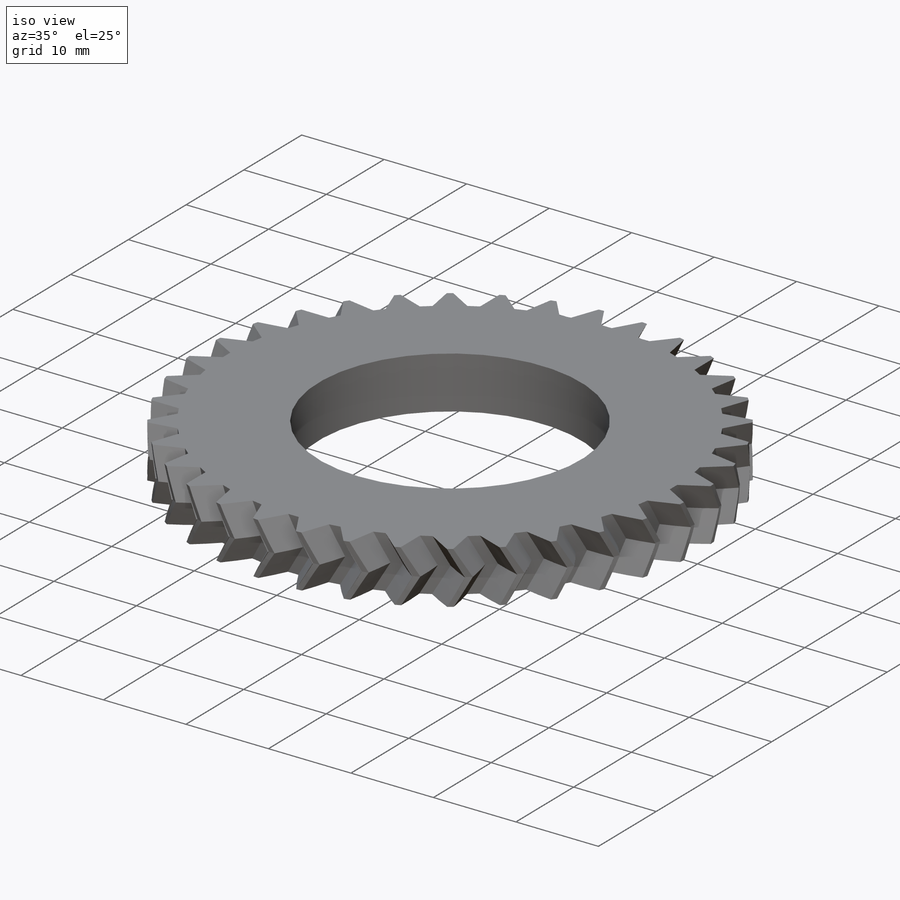
[diagram: iso view]
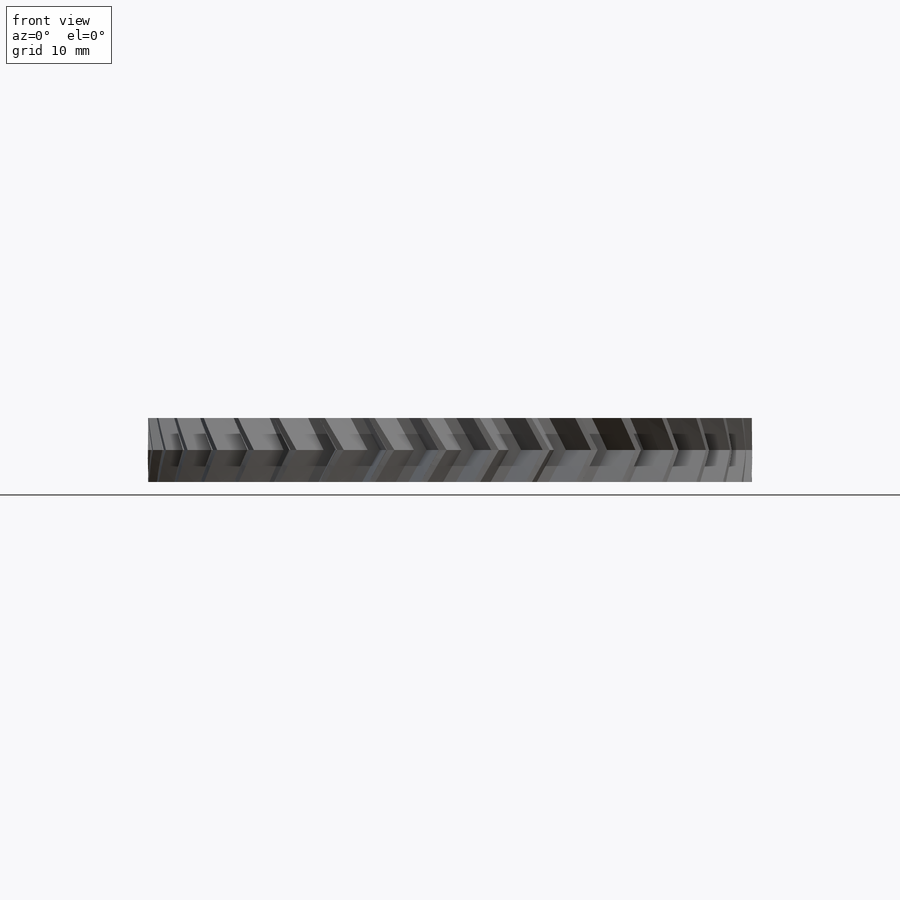
[diagram: front view]
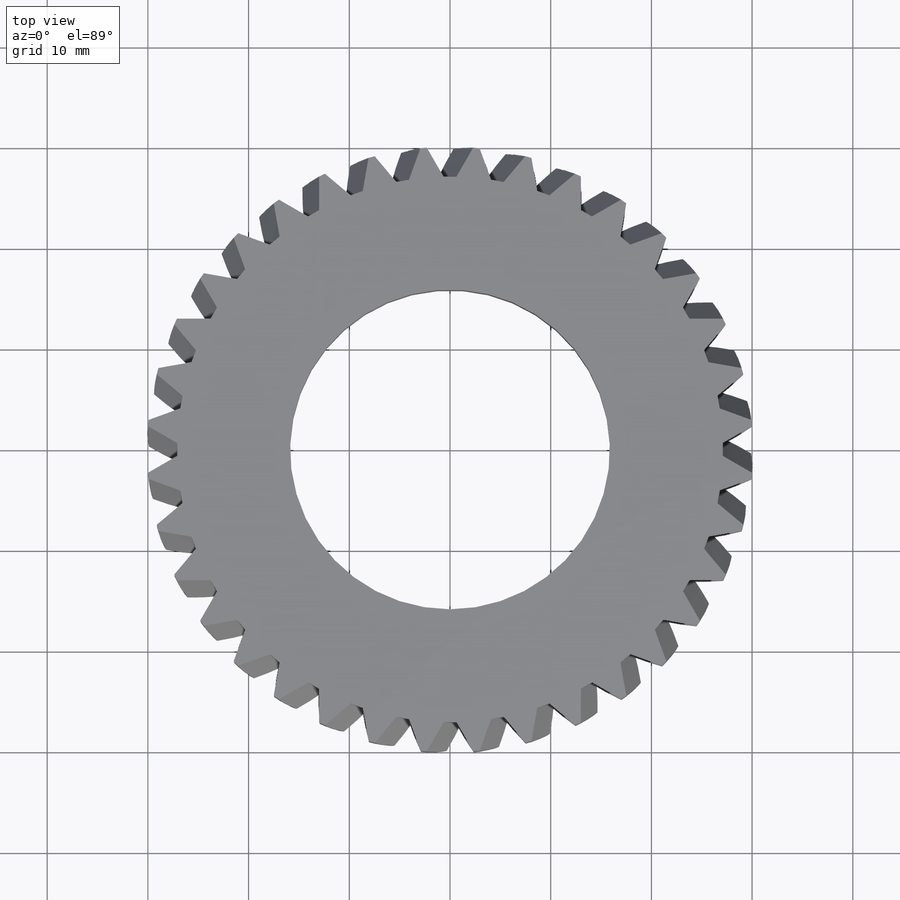
[diagram: top view]
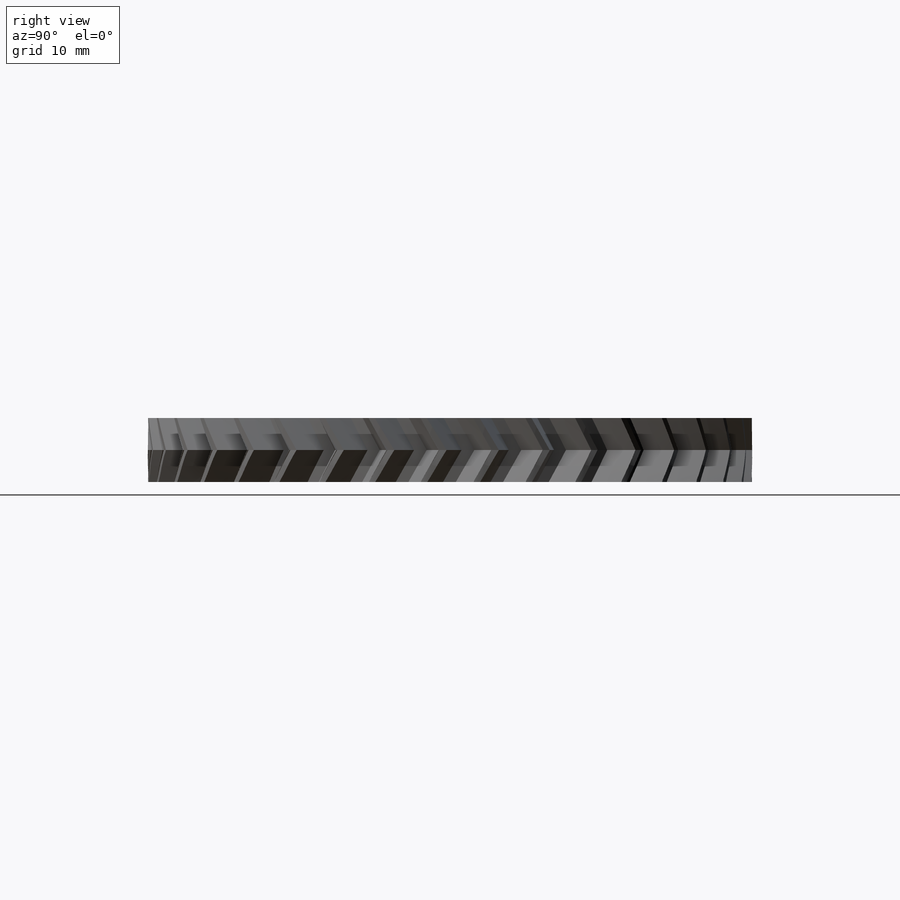
[diagram: right view]
SOLIDWORKS PART (.sldprt)
format: sldprt  version: not decoded by parser v0  size: 1,587,712 bytes
history: native  units: mm
features: sketch x5, material x1, extrude x1, cut_extrude x1, sweep x1, pattern_circular x1 + 1 further entry (+13 scaffold rows collapsed)
feature tree (24):
  scaffold x13  (default folders/planes/origin — collapsed)
  material  "Material <not specified>"
  "Design Table"
  sketch  "OD"  dims[OD=31.75mm]
  extrude  "Mass"  Depth=6.35mm
  sketch  "Pitch Dia."  dims[Pitch Diameter=25.4mm]
  sketch  "Shaft"  dims[ID=6.35mm]
  cut_extrude  "Shaft Hole"  [1 undecoded]
  sketch  "Tooth Profile"  dims[c1.Bottom Land=1.27mm c1.D2=~13.511307mm c1.Pitch Angle=22.5deg c1.Top Land=0.635mm c1.D4=~2.073863mm c1.Tooth Angle=120.0deg c1.D5=1.27mm c1.Tooth Angle 2=120.0deg c1.D1=~8.680285mm c2.D1=10.0deg]
  sketch  "Tooth Path"  dims[D1=~3.627708mm Helix Angle=60.0deg]
  sweep  "Tooth"
  pattern_circular  "TPattern"  Count=16 Angle=360deg
decode coverage: 7 of 9 modeling features carry decoded parameters; 1 rows unclassified (native names shown)
note: ~ marks probable driven/reference dimensions
note: 1 parameter value undecoded
note: suppression state not decoded; provenance and decode notes live in map.json
